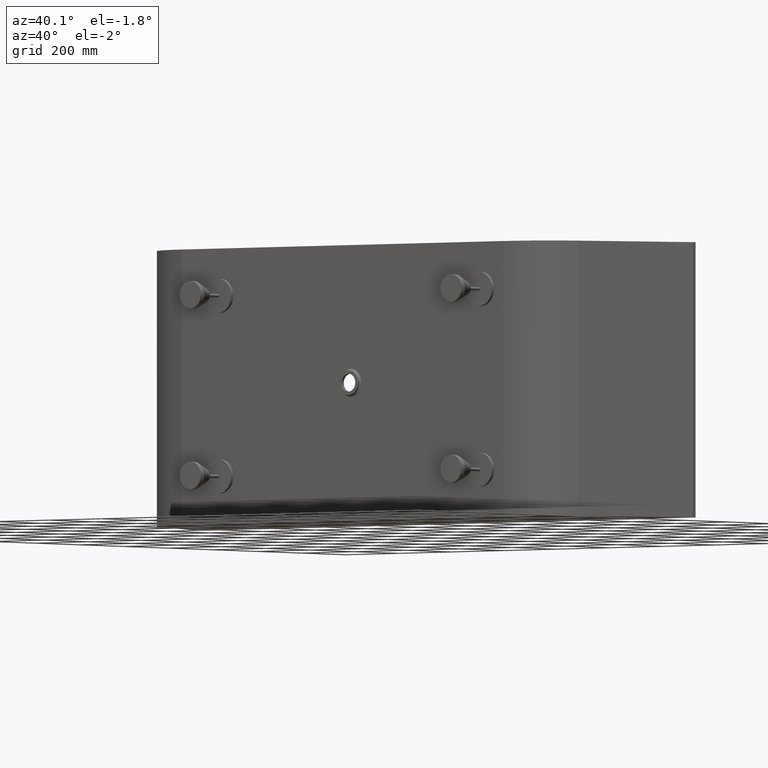
[diagram: clean part render]
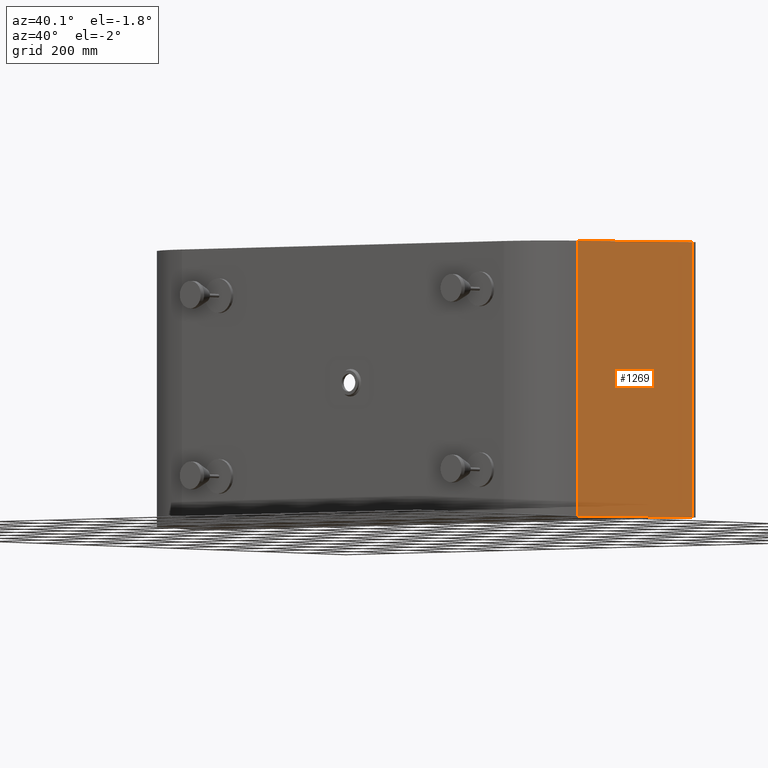
[diagram: same view with one face highlighted and labeled with its STEP entity id]
A machine part, auxiliary view. The second image highlights one B-rep face of the part: STEP entity #1269.
In plain terms, the highlighted planar face has unit normal (0.886, -0.4636, 0).
Its self-contained STEP definition (entity closure, byte-faithful):
#55 = CARTESIAN_POINT ( 'NONE',  ( 737.3910602829770369, -385.8441594503952956, 400.0000000000000000 ) ) ;
#117 = VERTEX_POINT ( 'NONE', #301 ) ;
#143 = CARTESIAN_POINT ( 'NONE',  ( 767.9929151643846126, -327.3606145659275626, 390.0000000000000000 ) ) ;
#195 = DIRECTION ( 'NONE',  ( 0.0000000000000000000, -0.0000000000000000000, -1.000000000000000000 ) ) ;
#227 = EDGE_CURVE ( 'NONE', #986, #117, #1877, .T. ) ;
#301 = CARTESIAN_POINT ( 'NONE',  ( 767.9929151643846126, -327.3606145659275626, -400.0000000000000000 ) ) ;
#535 = DIRECTION ( 'NONE',  ( -0.4636219741234655634, -0.8860331061026223143, 0.0000000000000000000 ) ) ;
#558 = CARTESIAN_POINT ( 'NONE',  ( 939.2862599953933795, 1.486202384699272120E-17, 390.0000000000000000 ) ) ;
#570 = DIRECTION ( 'NONE',  ( 0.8860331061026223143, -0.4636219741234655078, 0.0000000000000000000 ) ) ;
#626 = VECTOR ( 'NONE', #1223, 1000.000000000000000 ) ;
#682 = VECTOR ( 'NONE', #1577, 999.9999999999998863 ) ;
#733 = FACE_OUTER_BOUND ( 'NONE', #1645, .T. ) ;
#906 = LINE ( 'NONE', #55, #682 ) ;
#947 = EDGE_CURVE ( 'NONE', #1825, #986, #906, .T. ) ;
#986 = VERTEX_POINT ( 'NONE', #2188 ) ;
#1082 = CARTESIAN_POINT ( 'NONE',  ( 939.2862599953933795, 1.486202384699278899E-17, 400.0000000000000000 ) ) ;
#1149 = ORIENTED_EDGE ( 'NONE', *, *, #947, .T. ) ;
#1181 = EDGE_CURVE ( 'NONE', #1887, #117, #1373, .T. ) ;
#1212 = ORIENTED_EDGE ( 'NONE', *, *, #1779, .F. ) ;
#1223 = DIRECTION ( 'NONE',  ( 0.0000000000000000000, 0.0000000000000000000, -1.000000000000000000 ) ) ;
#1234 = DIRECTION ( 'NONE',  ( 0.4636219741234655078, 0.8860331061026223143, 0.0000000000000000000 ) ) ;
#1269 = ADVANCED_FACE ( 'NONE', ( #733 ), #1411, .T. ) ;
#1373 = LINE ( 'NONE', #2043, #1559 ) ;
#1411 = PLANE ( 'NONE',  #1734 ) ;
#1438 = CARTESIAN_POINT ( 'NONE',  ( 939.2862599953933795, 1.486202384699278899E-17, -400.0000000000000000 ) ) ;
#1559 = VECTOR ( 'NONE', #535, 999.9999999999998863 ) ;
#1577 = DIRECTION ( 'NONE',  ( -0.4636219741234655634, -0.8860331061026223143, 0.0000000000000000000 ) ) ;
#1641 = ORIENTED_EDGE ( 'NONE', *, *, #1181, .F. ) ;
#1645 = EDGE_LOOP ( 'NONE', ( #1641, #1212, #1149, #2172 ) ) ;
#1734 = AXIS2_PLACEMENT_3D ( 'NONE', #2081, #570, #1234 ) ;
#1779 = EDGE_CURVE ( 'NONE', #1825, #1887, #2071, .T. ) ;
#1825 = VERTEX_POINT ( 'NONE', #1082 ) ;
#1877 = LINE ( 'NONE', #143, #2011 ) ;
#1887 = VERTEX_POINT ( 'NONE', #1438 ) ;
#2011 = VECTOR ( 'NONE', #195, 1000.000000000000000 ) ;
#2043 = CARTESIAN_POINT ( 'NONE',  ( 737.3910602829770369, -385.8441594503952956, -400.0000000000000000 ) ) ;
#2071 = LINE ( 'NONE', #558, #626 ) ;
#2081 = CARTESIAN_POINT ( 'NONE',  ( 737.3910602829770369, -385.8441594503952956, 390.0000000000000000 ) ) ;
#2172 = ORIENTED_EDGE ( 'NONE', *, *, #227, .T. ) ;
#2188 = CARTESIAN_POINT ( 'NONE',  ( 767.9929151643846126, -327.3606145659275626, 400.0000000000000000 ) ) ;